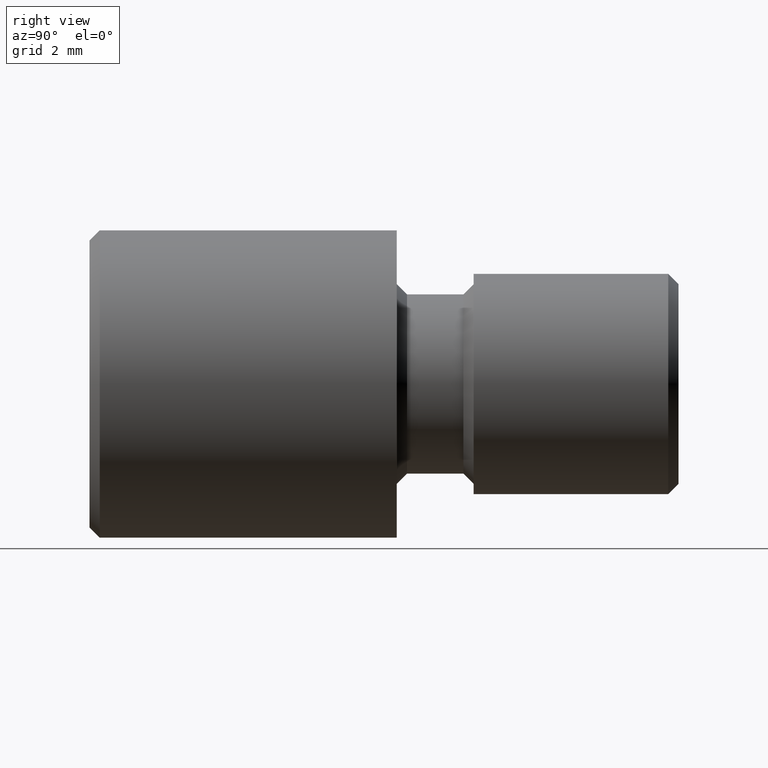
[diagram: clean part render]
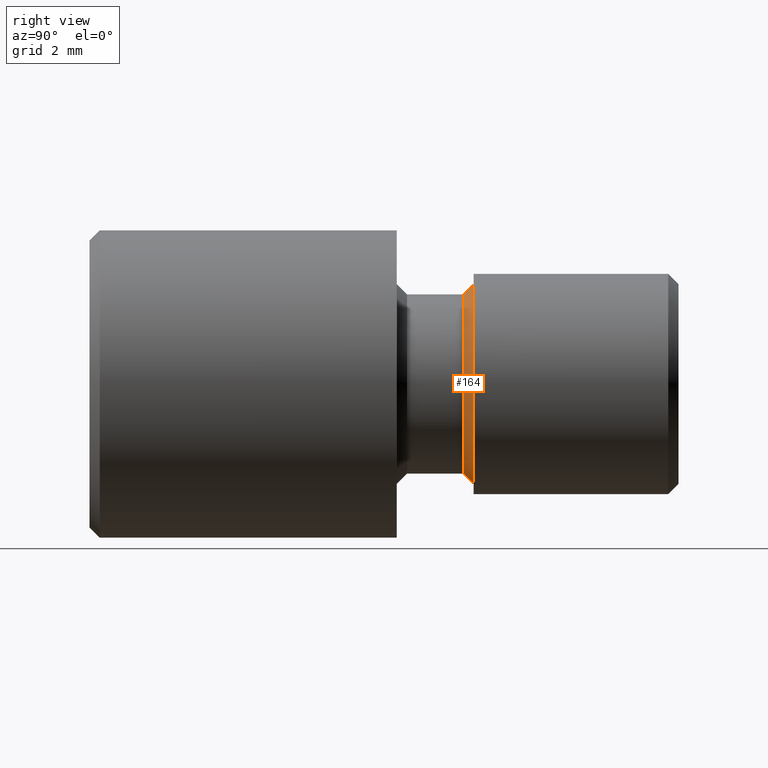
[diagram: same view with one face highlighted and labeled with its STEP entity id]
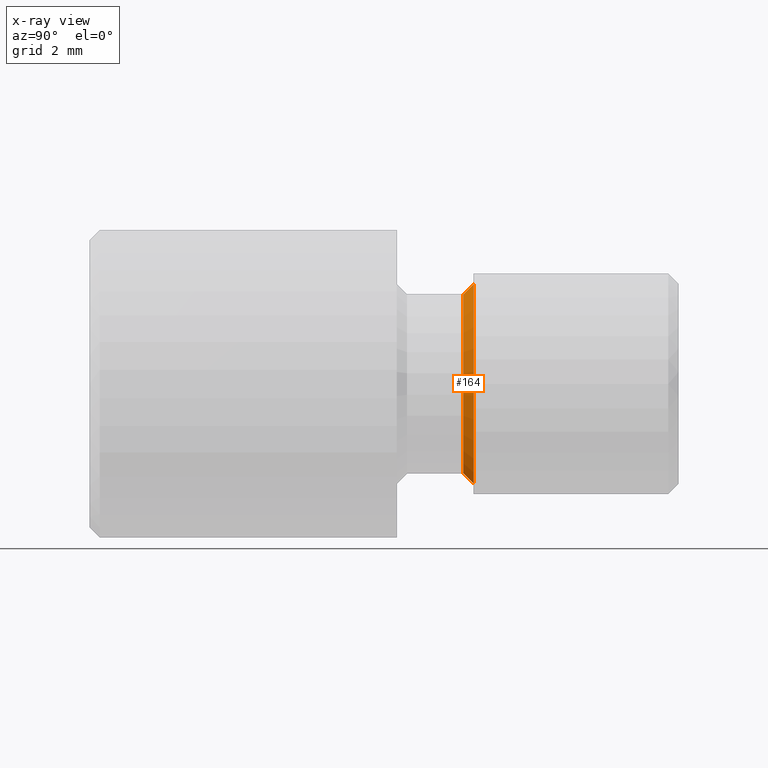
[diagram: x-ray of the same camera — body ghosted, the highlighted face saturated]
A machine part, right view. The second image highlights one B-rep face of the part: STEP entity #164.
The next image is the same camera in x-ray: the body ghosted, the highlighted face saturated — about 0% of this face is hidden behind the body in this view.
In plain terms, the highlighted conical surface has half-angle 45 deg.
Its self-contained STEP definition (entity closure, byte-faithful):
#27 = AXIS2_PLACEMENT_3D ( 'NONE', #400, #475, #403 ) ;
#45 = LINE ( 'NONE', #906, #392 ) ;
#51 = ORIENTED_EDGE ( 'NONE', *, *, #605, .F. ) ;
#52 = EDGE_CURVE ( 'NONE', #767, #862, #342, .T. ) ;
#58 = EDGE_CURVE ( 'NONE', #767, #329, #951, .T. ) ;
#61 = FACE_OUTER_BOUND ( 'NONE', #366, .T. ) ;
#71 = CIRCLE ( 'NONE', #387, 1.950000000000000400 ) ;
#126 = DIRECTION ( 'NONE',  ( 0.0000000000000000000, 0.0000000000000000000, 1.000000000000000000 ) ) ;
#142 = CARTESIAN_POINT ( 'NONE',  ( 2.388061258337339100E-016, 7.500000000000000000, -1.950000000000000400 ) ) ;
#164 = ADVANCED_FACE ( 'NONE', ( #61 ), #618, .T. ) ;
#173 = CARTESIAN_POINT ( 'NONE',  ( 0.0000000000000000000, 7.500000000000000000, 1.950000000000000400 ) ) ;
#212 = ORIENTED_EDGE ( 'NONE', *, *, #254, .F. ) ;
#254 = EDGE_CURVE ( 'NONE', #669, #862, #71, .T. ) ;
#269 = DIRECTION ( 'NONE',  ( 8.659560562354964900E-017, 0.7071067811865449100, -0.7071067811865502400 ) ) ;
#320 = ORIENTED_EDGE ( 'NONE', *, *, #58, .F. ) ;
#329 = VERTEX_POINT ( 'NONE', #712 ) ;
#333 = DIRECTION ( 'NONE',  ( -0.0000000000000000000, 1.000000000000000000, -0.0000000000000000000 ) ) ;
#342 = LINE ( 'NONE', #640, #801 ) ;
#366 = EDGE_LOOP ( 'NONE', ( #320, #733, #212, #51 ) ) ;
#387 = AXIS2_PLACEMENT_3D ( 'NONE', #489, #417, #126 ) ;
#391 = DIRECTION ( 'NONE',  ( 0.0000000000000000000, 0.7071067811865449100, 0.7071067811865502400 ) ) ;
#392 = VECTOR ( 'NONE', #391, 1000.000000000000100 ) ;
#400 = CARTESIAN_POINT ( 'NONE',  ( 0.0000000000000000000, 7.300000000000000700, 0.0000000000000000000 ) ) ;
#403 = DIRECTION ( 'NONE',  ( 0.0000000000000000000, 0.0000000000000000000, 1.000000000000000000 ) ) ;
#417 = DIRECTION ( 'NONE',  ( 0.0000000000000000000, 1.000000000000000000, 0.0000000000000000000 ) ) ;
#475 = DIRECTION ( 'NONE',  ( 0.0000000000000000000, -1.000000000000000000, 0.0000000000000000000 ) ) ;
#489 = CARTESIAN_POINT ( 'NONE',  ( 0.0000000000000000000, 7.500000000000000000, 0.0000000000000000000 ) ) ;
#557 = CARTESIAN_POINT ( 'NONE',  ( 0.0000000000000000000, 7.300000000000000700, -1.750000000000000000 ) ) ;
#605 = EDGE_CURVE ( 'NONE', #329, #669, #45, .T. ) ;
#618 = CONICAL_SURFACE ( 'NONE', #734, 1.950000000000000400, 0.7853981633974520500 ) ;
#640 = CARTESIAN_POINT ( 'NONE',  ( 2.388061258337339100E-016, 7.500000000000000000, -1.950000000000000400 ) ) ;
#669 = VERTEX_POINT ( 'NONE', #173 ) ;
#712 = CARTESIAN_POINT ( 'NONE',  ( 2.143131898507868300E-016, 7.300000000000000700, 1.750000000000000000 ) ) ;
#733 = ORIENTED_EDGE ( 'NONE', *, *, #52, .T. ) ;
#734 = AXIS2_PLACEMENT_3D ( 'NONE', #835, #333, #839 ) ;
#767 = VERTEX_POINT ( 'NONE', #557 ) ;
#801 = VECTOR ( 'NONE', #269, 1000.000000000000100 ) ;
#835 = CARTESIAN_POINT ( 'NONE',  ( 0.0000000000000000000, 7.500000000000000000, 0.0000000000000000000 ) ) ;
#839 = DIRECTION ( 'NONE',  ( 0.0000000000000000000, 0.0000000000000000000, 1.000000000000000000 ) ) ;
#862 = VERTEX_POINT ( 'NONE', #142 ) ;
#906 = CARTESIAN_POINT ( 'NONE',  ( 0.0000000000000000000, 7.500000000000000000, 1.950000000000000400 ) ) ;
#951 = CIRCLE ( 'NONE', #27, 1.750000000000000000 ) ;